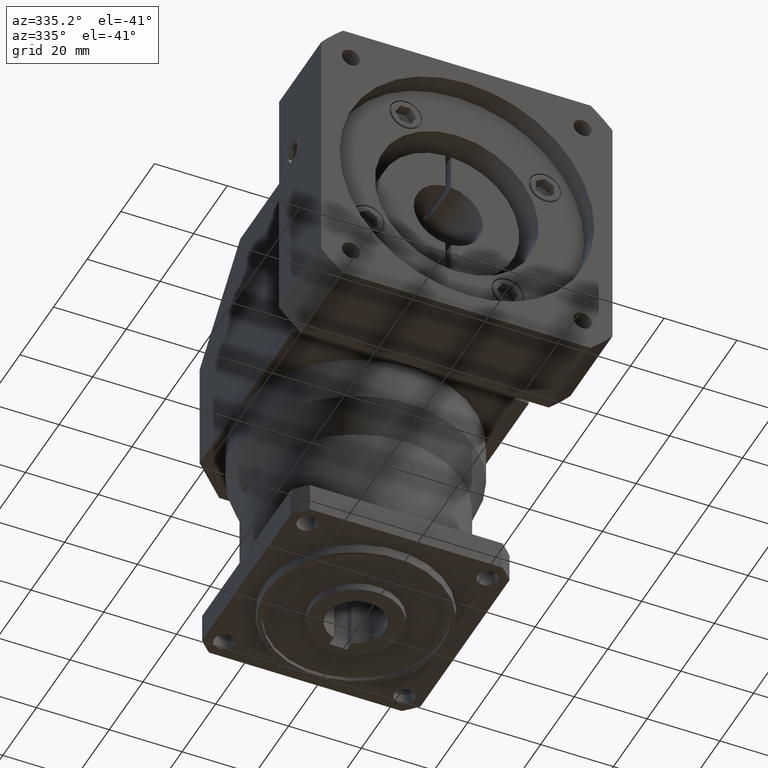
[diagram: clean part render]
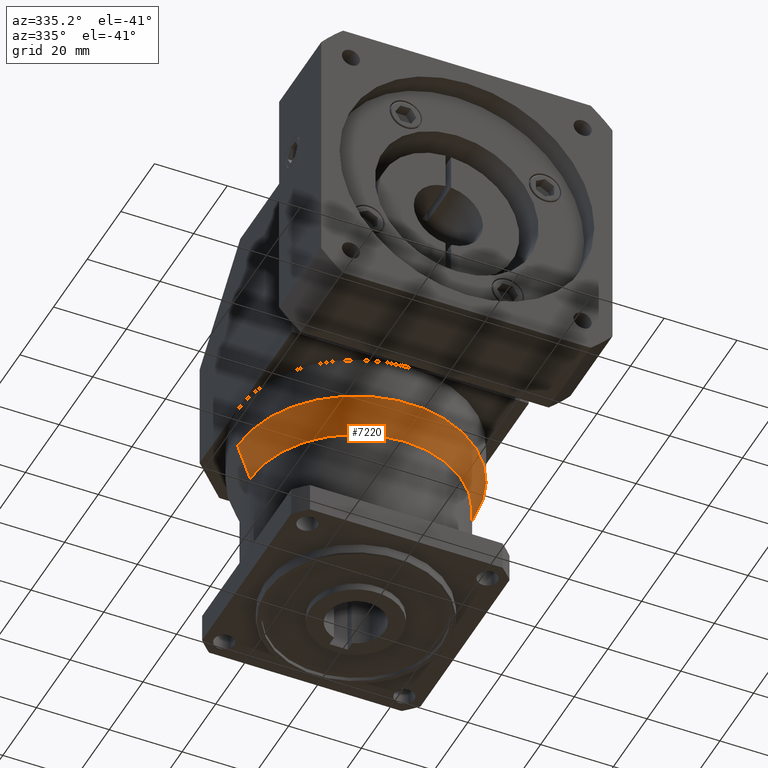
[diagram: same view with one face highlighted and labeled with its STEP entity id]
A machine part, auxiliary view. The second image highlights one B-rep face of the part: STEP entity #7220.
In plain terms, the highlighted conical surface has half-angle 20 deg.
Its self-contained STEP definition (entity closure, byte-faithful):
#99 = CARTESIAN_POINT ( 'NONE',  ( 0.0000000000000000000, 0.0000000000000000000, -11.99999999999997300 ) ) ;
#215 = EDGE_CURVE ( 'NONE', #1861, #8296, #1093, .T. ) ;
#431 = ORIENTED_EDGE ( 'NONE', *, *, #2199, .T. ) ;
#922 = DIRECTION ( 'NONE',  ( -0.0000000000000000000, -0.0000000000000000000, 1.000000000000000000 ) ) ;
#992 = VERTEX_POINT ( 'NONE', #3058 ) ;
#1093 = CIRCLE ( 'NONE', #5915, 32.50000000000000000 ) ;
#1164 = VERTEX_POINT ( 'NONE', #1920 ) ;
#1378 = ORIENTED_EDGE ( 'NONE', *, *, #215, .F. ) ;
#1406 = AXIS2_PLACEMENT_3D ( 'NONE', #99, #4725, #3432 ) ;
#1526 = EDGE_CURVE ( 'NONE', #992, #1164, #2128, .T. ) ;
#1540 = EDGE_CURVE ( 'NONE', #1164, #1861, #3469, .T. ) ;
#1708 = VECTOR ( 'NONE', #2184, 1000.000000000000000 ) ;
#1861 = VERTEX_POINT ( 'NONE', #2098 ) ;
#1920 = CARTESIAN_POINT ( 'NONE',  ( -29.00000000000000000, 3.551475717527324000E-015, -21.61617096809094100 ) ) ;
#2014 = EDGE_LOOP ( 'NONE', ( #7199, #2966, #431, #1378 ) ) ;
#2098 = CARTESIAN_POINT ( 'NONE',  ( -32.50000000000000000, 3.980102097228898600E-015, -11.99999999999997300 ) ) ;
#2128 = CIRCLE ( 'NONE', #7272, 29.00000000000000000 ) ;
#2184 = DIRECTION ( 'NONE',  ( -0.3420201433256753200, 4.188538737677072500E-017, 0.9396926207859059900 ) ) ;
#2199 = EDGE_CURVE ( 'NONE', #992, #8296, #2799, .T. ) ;
#2295 = DIRECTION ( 'NONE',  ( 0.0000000000000000000, 0.0000000000000000000, -1.000000000000000000 ) ) ;
#2594 = VECTOR ( 'NONE', #3976, 1000.000000000000000 ) ;
#2799 = LINE ( 'NONE', #4252, #2594 ) ;
#2966 = ORIENTED_EDGE ( 'NONE', *, *, #1526, .F. ) ;
#3058 = CARTESIAN_POINT ( 'NONE',  ( 29.00000000000000000, 0.0000000000000000000, -21.61617096809094100 ) ) ;
#3432 = DIRECTION ( 'NONE',  ( 1.000000000000000000, 0.0000000000000000000, 0.0000000000000000000 ) ) ;
#3469 = LINE ( 'NONE', #6757, #1708 ) ;
#3976 = DIRECTION ( 'NONE',  ( 0.3420201433256753200, 0.0000000000000000000, 0.9396926207859059900 ) ) ;
#4213 = DIRECTION ( 'NONE',  ( 1.000000000000000000, 0.0000000000000000000, 0.0000000000000000000 ) ) ;
#4252 = CARTESIAN_POINT ( 'NONE',  ( 32.50000000000000000, 0.0000000000000000000, -11.99999999999997300 ) ) ;
#4725 = DIRECTION ( 'NONE',  ( -0.0000000000000000000, -0.0000000000000000000, 1.000000000000000000 ) ) ;
#4888 = CARTESIAN_POINT ( 'NONE',  ( 0.0000000000000000000, 0.0000000000000000000, -11.99999999999997300 ) ) ;
#5151 = FACE_OUTER_BOUND ( 'NONE', #2014, .T. ) ;
#5915 = AXIS2_PLACEMENT_3D ( 'NONE', #4888, #922, #4213 ) ;
#5975 = CONICAL_SURFACE ( 'NONE', #1406, 32.50000000000000000, 0.3490658503988729500 ) ;
#6104 = CARTESIAN_POINT ( 'NONE',  ( 32.50000000000000000, 0.0000000000000000000, -11.99999999999997300 ) ) ;
#6145 = DIRECTION ( 'NONE',  ( 1.000000000000000000, 0.0000000000000000000, 0.0000000000000000000 ) ) ;
#6757 = CARTESIAN_POINT ( 'NONE',  ( -32.50000000000000000, 3.980102097228898600E-015, -11.99999999999997300 ) ) ;
#7199 = ORIENTED_EDGE ( 'NONE', *, *, #1540, .F. ) ;
#7220 = ADVANCED_FACE ( 'NONE', ( #5151 ), #5975, .T. ) ;
#7272 = AXIS2_PLACEMENT_3D ( 'NONE', #7742, #2295, #6145 ) ;
#7742 = CARTESIAN_POINT ( 'NONE',  ( 0.0000000000000000000, 0.0000000000000000000, -21.61617096809094100 ) ) ;
#8296 = VERTEX_POINT ( 'NONE', #6104 ) ;